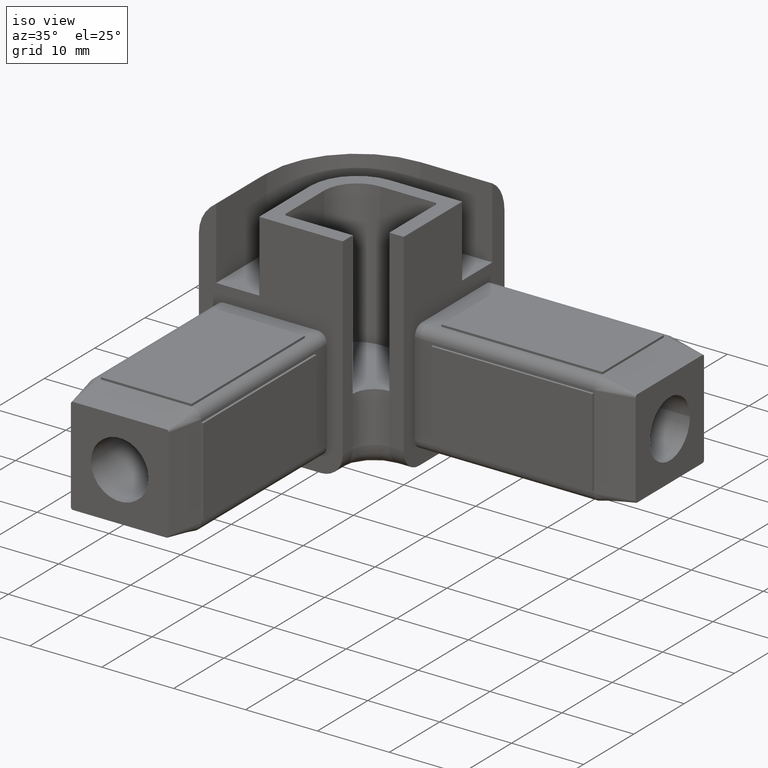
[diagram: clean part render]
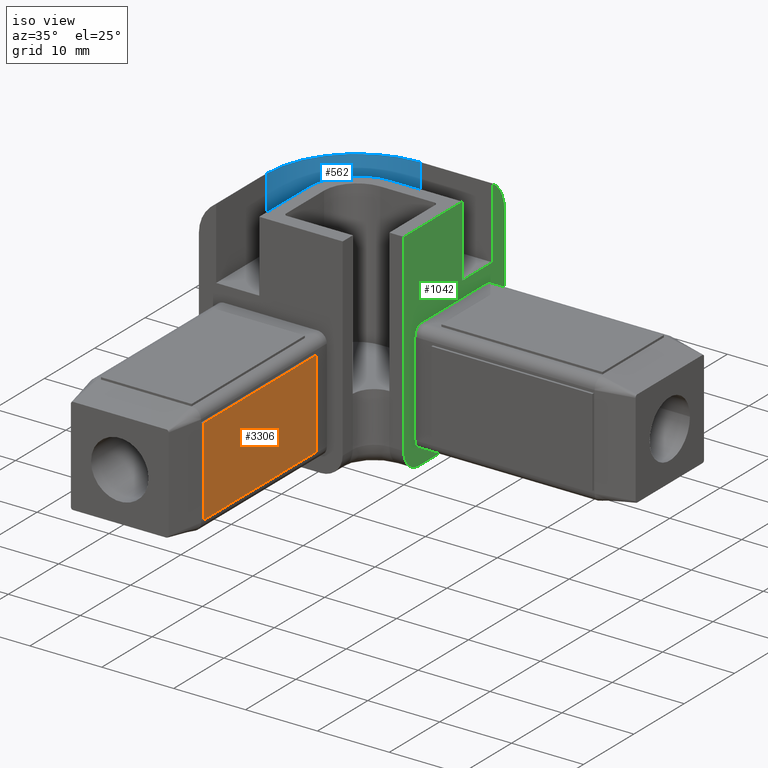
[diagram: same view with three faces highlighted in distinct colors, each labeled with its STEP entity id]
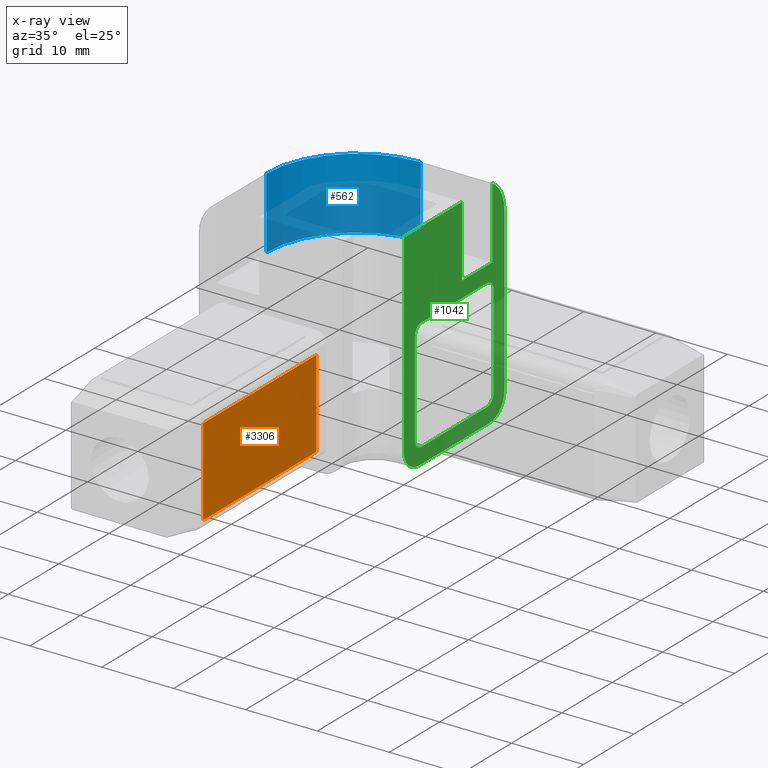
[diagram: x-ray of the same camera — body ghosted, the three highlighted faces saturated]
A machine part, iso view with three faces highlighted in distinct colors.
The next image is the same camera in x-ray (body ghosted, the three faces saturated) — at least one of them is partly hidden behind the body in this view.
Their STEP definitions:

[orange] entity #3306 — the highlighted planar face has unit normal (1, 0, 0).
#3204=CARTESIAN_POINT('',(-36.899990346765776,-17.500000000000313,-6.099999999999580));
#3205=VERTEX_POINT('',#3204);
#3213=CARTESIAN_POINT('',(-36.899990346765776,-17.500000000000313,6.099999999999819));
#3214=VERTEX_POINT('',#3213);
#3221=CARTESIAN_POINT('',(-36.899990346765776,-17.500000000000313,-6.099999999999580));
#3222=DIRECTION('',(0.0,0.0,1.0));
#3223=VECTOR('',#3222,12.199999999999399);
#3224=LINE('',#3221,#3223);
#3225=EDGE_CURVE('',#3205,#3214,#3224,.T.);
#3237=CARTESIAN_POINT('',(-36.899990346765776,-39.999997575695033,6.099999999999819));
#3238=VERTEX_POINT('',#3237);
#3245=CARTESIAN_POINT('',(-36.899990346765776,-17.500000000000313,6.099999999999819));
#3246=DIRECTION('',(0.0,-1.0,0.0));
#3247=VECTOR('',#3246,22.499997575694721);
#3248=LINE('',#3245,#3247);
#3249=EDGE_CURVE('',#3214,#3238,#3248,.T.);
#3261=CARTESIAN_POINT('',(-36.899990346765776,-39.999997575695033,-6.099999999999580));
#3262=VERTEX_POINT('',#3261);
#3269=CARTESIAN_POINT('',(-36.899990346765776,-39.999997575695033,6.099999999999819));
#3270=DIRECTION('',(0.0,0.0,-1.0));
#3271=VECTOR('',#3270,12.199999999999399);
#3272=LINE('',#3269,#3271);
#3273=EDGE_CURVE('',#3238,#3262,#3272,.T.);
#3283=CARTESIAN_POINT('',(-36.899990346765776,-39.999997575695033,-6.099999999999580));
#3284=DIRECTION('',(0.0,1.0,0.0));
#3285=VECTOR('',#3284,22.499997575694721);
#3286=LINE('',#3283,#3285);
#3287=EDGE_CURVE('',#3262,#3205,#3286,.T.);
#3295=CARTESIAN_POINT('',(-36.899990346765776,-42.251197333351371,-7.321200000092491));
#3296=DIRECTION('',(1.0,0.0,0.0));
#3297=DIRECTION('',(0.0,1.0,0.0));
#3298=AXIS2_PLACEMENT_3D('',#3295,#3296,#3297);
#3299=PLANE('',#3298);
#3300=ORIENTED_EDGE('',*,*,#3225,.T.);
#3301=ORIENTED_EDGE('',*,*,#3249,.T.);
#3302=ORIENTED_EDGE('',*,*,#3273,.T.);
#3303=ORIENTED_EDGE('',*,*,#3287,.T.);
#3304=EDGE_LOOP('',(#3300,#3301,#3302,#3303));
#3305=FACE_OUTER_BOUND('',#3304,.T.);
#3306=ADVANCED_FACE('',(#3305),#3299,.T.);

[blue] entity #562 — the highlighted cylindrical surface (partial cylindrical patch) has radius 12.6 mm, axis along (0, 0, 1).
#221=CARTESIAN_POINT('',(-39.999990346764093,7.600000000000108,9.999999923706001));
#222=VERTEX_POINT('',#221);
#229=CARTESIAN_POINT('',(-52.599990346764116,-4.999999999999886,9.999999923706001));
#230=VERTEX_POINT('',#229);
#231=CARTESIAN_POINT('',(-39.999990346764093,-4.999999999999886,9.999999923706001));
#232=DIRECTION('',(0.0,0.0,1.0));
#233=DIRECTION('',(1.0,0.0,0.0));
#234=AXIS2_PLACEMENT_3D('',#231,#232,#233);
#235=CIRCLE('',#234,12.599999999999994);
#236=EDGE_CURVE('',#222,#230,#235,.T.);
#458=CARTESIAN_POINT('',(-52.599990346764116,-4.999999999999886,19.919999999999945));
#459=VERTEX_POINT('',#458);
#491=CARTESIAN_POINT('',(-39.999990346764093,7.600000000000108,19.919999999999945));
#492=VERTEX_POINT('',#491);
#530=CARTESIAN_POINT('',(-39.999990346764093,7.600000000000108,19.919999999999945));
#531=DIRECTION('',(0.0,0.0,-1.0));
#532=VECTOR('',#531,9.920000076293945);
#533=LINE('',#530,#532);
#534=EDGE_CURVE('',#492,#222,#533,.T.);
#540=CARTESIAN_POINT('',(-39.999990346764093,-4.999999999999886,19.919999999999945));
#541=DIRECTION('',(0.0,0.0,1.0));
#542=DIRECTION('',(1.0,0.0,0.0));
#543=AXIS2_PLACEMENT_3D('',#540,#541,#542);
#544=CYLINDRICAL_SURFACE('',#543,12.599999999999994);
#545=CARTESIAN_POINT('',(-39.999990346764093,-4.999999999999886,19.919999999999945));
#546=DIRECTION('',(0.0,0.0,1.0));
#547=DIRECTION('',(1.0,0.0,0.0));
#548=AXIS2_PLACEMENT_3D('',#545,#546,#547);
#549=CIRCLE('',#548,12.599999999999994);
#550=EDGE_CURVE('',#492,#459,#549,.T.);
#551=ORIENTED_EDGE('',*,*,#550,.T.);
#552=CARTESIAN_POINT('',(-52.599990346764116,-4.999999999999886,19.919999999999945));
#553=DIRECTION('',(0.0,0.0,-1.0));
#554=VECTOR('',#553,9.920000076293945);
#555=LINE('',#552,#554);
#556=EDGE_CURVE('',#459,#230,#555,.T.);
#557=ORIENTED_EDGE('',*,*,#556,.T.);
#558=ORIENTED_EDGE('',*,*,#236,.F.);
#559=ORIENTED_EDGE('',*,*,#534,.F.);
#560=EDGE_LOOP('',(#551,#557,#558,#559));
#561=FACE_OUTER_BOUND('',#560,.T.);
#562=ADVANCED_FACE('',(#561),#544,.F.);

[green] entity #1042 — the highlighted planar face has unit normal (1, 0, 0).
#7=CARTESIAN_POINT('',(-29.999990346764093,-9.999999999999886,19.919999999999945));
#8=VERTEX_POINT('',#7);
#9=CARTESIAN_POINT('',(-29.999990346764093,1.599999999999994,19.919999999999945));
#10=VERTEX_POINT('',#9);
#11=CARTESIAN_POINT('',(-29.999990346764093,-9.999999999999886,19.919999999999945));
#12=DIRECTION('',(0.0,1.0,0.0));
#13=VECTOR('',#12,11.599999999999881);
#14=LINE('',#11,#13);
#15=EDGE_CURVE('',#8,#10,#14,.T.);
#188=CARTESIAN_POINT('',(-29.999990346764093,1.599999999999994,9.999999923706001));
#189=VERTEX_POINT('',#188);
#190=CARTESIAN_POINT('',(-29.999990346764093,1.599999999999994,19.919999999999945));
#191=DIRECTION('',(0.0,0.0,-1.0));
#192=VECTOR('',#191,9.920000076293945);
#193=LINE('',#190,#192);
#194=EDGE_CURVE('',#10,#189,#193,.T.);
#213=CARTESIAN_POINT('',(-29.999990346764093,7.600000000000108,9.999999923706001));
#214=VERTEX_POINT('',#213);
#215=CARTESIAN_POINT('',(-29.999990346764093,1.599999999999994,9.999999923706001));
#216=DIRECTION('',(0.0,1.0,0.0));
#217=VECTOR('',#216,6.000000000000114);
#218=LINE('',#215,#217);
#219=EDGE_CURVE('',#189,#214,#218,.T.);
#481=CARTESIAN_POINT('',(-29.999990346764093,10.000000000000114,15.649168699187417));
#482=VERTEX_POINT('',#481);
#500=CARTESIAN_POINT('',(-29.999990346764093,7.600000000000108,19.919999999999945));
#501=VERTEX_POINT('',#500);
#508=CARTESIAN_POINT('',(-29.999990346764093,5.000000000000114,15.649168699187417));
#509=DIRECTION('',(1.0,0.0,0.0));
#510=DIRECTION('',(0.0,1.0,0.0));
#511=AXIS2_PLACEMENT_3D('',#508,#509,#510);
#512=CIRCLE('',#511,5.0);
#513=EDGE_CURVE('',#482,#501,#512,.T.);
#523=CARTESIAN_POINT('',(-29.999990346764093,7.600000000000108,19.919999999999945));
#524=DIRECTION('',(0.0,0.0,-1.0));
#525=VECTOR('',#524,9.920000076293945);
#526=LINE('',#523,#525);
#527=EDGE_CURVE('',#501,#214,#526,.T.);
#723=CARTESIAN_POINT('',(-29.999990346764093,7.000000000000114,-9.999999999999719));
#724=VERTEX_POINT('',#723);
#742=CARTESIAN_POINT('',(-29.999990346764093,10.000000000000114,-6.999999999999719));
#743=VERTEX_POINT('',#742);
#750=CARTESIAN_POINT('',(-29.999990346764093,7.000000000000114,-6.999999999999719));
#751=DIRECTION('',(1.0,0.0,0.0));
#752=DIRECTION('',(0.0,0.0,-1.0));
#753=AXIS2_PLACEMENT_3D('',#750,#751,#752);
#754=CIRCLE('',#753,3.0);
#755=EDGE_CURVE('',#724,#743,#754,.T.);
#810=CARTESIAN_POINT('',(-29.999990346764093,10.000000000000114,-6.999999999999719));
#811=DIRECTION('',(0.0,0.0,1.0));
#812=VECTOR('',#811,22.649168699187136);
#813=LINE('',#810,#812);
#814=EDGE_CURVE('',#743,#482,#813,.T.);
#935=CARTESIAN_POINT('',(-29.999990346764093,-9.999999999999886,-9.999999999999719));
#936=DIRECTION('',(1.0,0.0,0.0));
#937=DIRECTION('',(0.0,1.0,0.0));
#938=AXIS2_PLACEMENT_3D('',#935,#936,#937);
#939=PLANE('',#938);
#940=CARTESIAN_POINT('',(-29.999990346764093,-6.999999999999886,-9.999999999999719));
#941=VERTEX_POINT('',#940);
#942=CARTESIAN_POINT('',(-29.999990346764093,-6.999999999999886,-9.999999999999719));
#943=DIRECTION('',(0.0,1.0,0.0));
#944=VECTOR('',#943,14.0);
#945=LINE('',#942,#944);
#946=EDGE_CURVE('',#941,#724,#945,.T.);
#947=ORIENTED_EDGE('',*,*,#946,.T.);
#948=ORIENTED_EDGE('',*,*,#755,.T.);
#949=ORIENTED_EDGE('',*,*,#814,.T.);
#950=ORIENTED_EDGE('',*,*,#513,.T.);
#951=ORIENTED_EDGE('',*,*,#527,.T.);
#952=ORIENTED_EDGE('',*,*,#219,.F.);
#953=ORIENTED_EDGE('',*,*,#194,.F.);
#954=ORIENTED_EDGE('',*,*,#15,.F.);
#955=CARTESIAN_POINT('',(-29.999990346764093,-9.999999999999886,-6.999999999999719));
#956=VERTEX_POINT('',#955);
#957=CARTESIAN_POINT('',(-29.999990346764093,-9.999999999999886,-6.999999999999719));
#958=DIRECTION('',(0.0,0.0,1.0));
#959=VECTOR('',#958,26.919999999999668);
#960=LINE('',#957,#959);
#961=EDGE_CURVE('',#956,#8,#960,.T.);
#962=ORIENTED_EDGE('',*,*,#961,.F.);
#963=CARTESIAN_POINT('',(-29.999990346764093,-6.999999999999886,-6.999999999999719));
#964=DIRECTION('',(1.0,0.0,0.0));
#965=DIRECTION('',(0.0,-1.0,0.0));
#966=AXIS2_PLACEMENT_3D('',#963,#964,#965);
#967=CIRCLE('',#966,3.0);
#968=EDGE_CURVE('',#956,#941,#967,.T.);
#969=ORIENTED_EDGE('',*,*,#968,.T.);
#970=EDGE_LOOP('',(#947,#948,#949,#950,#951,#952,#953,#954,#962,#969));
#971=FACE_OUTER_BOUND('',#970,.T.);
#972=CARTESIAN_POINT('',(-29.999990346764093,7.800114479961167,-6.518844334662036));
#973=VERTEX_POINT('',#972);
#974=CARTESIAN_POINT('',(-29.999990346764093,7.800114479961167,6.492768504121903));
#975=VERTEX_POINT('',#974);
#976=CARTESIAN_POINT('',(-29.999990346764093,7.800114479961167,-6.518844334662036));
#977=DIRECTION('',(0.0,0.0,1.0));
#978=VECTOR('',#977,13.011612838783940);
#979=LINE('',#976,#978);
#980=EDGE_CURVE('',#973,#975,#979,.T.);
#981=ORIENTED_EDGE('',*,*,#980,.F.);
#982=CARTESIAN_POINT('',(-29.999990346764093,6.492663622970127,-7.800190528373461));
#983=VERTEX_POINT('',#982);
#984=CARTESIAN_POINT('',(-29.999990346764093,6.492663622970127,-6.492473758294965));
#985=DIRECTION('',(1.0,0.0,0.0));
#986=DIRECTION('',(0.0,0.0,-1.0));
#987=AXIS2_PLACEMENT_3D('',#984,#985,#986);
#988=CIRCLE('',#987,1.307716770078496);
#989=EDGE_CURVE('',#983,#973,#988,.T.);
#990=ORIENTED_EDGE('',*,*,#989,.F.);
#991=CARTESIAN_POINT('',(-29.999990346764093,-6.514457880513163,-7.800190528373463));
#992=VERTEX_POINT('',#991);
#993=CARTESIAN_POINT('',(-29.999990346764093,-6.514457880513151,-7.800190528373463));
#994=DIRECTION('',(0.0,1.0,0.0));
#995=VECTOR('',#994,13.007121503483285);
#996=LINE('',#993,#995);
#997=EDGE_CURVE('',#992,#983,#996,.T.);
#998=ORIENTED_EDGE('',*,*,#997,.F.);
#999=CARTESIAN_POINT('',(-29.999990346764093,-7.799999999998391,-6.492702063160188));
#1000=VERTEX_POINT('',#999);
#1001=CARTESIAN_POINT('',(-29.999990346764093,-6.492324204442724,-6.492702063160188));
#1002=DIRECTION('',(1.0,0.0,0.0));
#1003=DIRECTION('',(0.0,-1.0,0.0));
#1004=AXIS2_PLACEMENT_3D('',#1001,#1002,#1003);
#1005=CIRCLE('',#1004,1.307675795555671);
#1006=EDGE_CURVE('',#1000,#992,#1005,.T.);
#1007=ORIENTED_EDGE('',*,*,#1006,.F.);
#1008=CARTESIAN_POINT('',(-29.999990346764093,-7.799999999998420,6.492702063203955));
#1009=VERTEX_POINT('',#1008);
#1010=CARTESIAN_POINT('',(-29.999990346764093,-7.799999999998420,6.492702063203955));
#1011=DIRECTION('',(0.0,0.0,-1.0));
#1012=VECTOR('',#1011,12.985404126364143);
#1013=LINE('',#1010,#1012);
#1014=EDGE_CURVE('',#1009,#1000,#1013,.T.);
#1015=ORIENTED_EDGE('',*,*,#1014,.F.);
#1016=CARTESIAN_POINT('',(-29.999990346764093,-6.470219850950315,7.800095264517101));
#1017=VERTEX_POINT('',#1016);
#1018=CARTESIAN_POINT('',(-29.999990346764093,-6.470219850950315,6.470123445729424));
#1019=DIRECTION('',(1.0,0.0,0.0));
#1020=DIRECTION('',(0.0,0.0,1.0));
#1021=AXIS2_PLACEMENT_3D('',#1018,#1019,#1020);
#1022=CIRCLE('',#1021,1.329971818787677);
#1023=EDGE_CURVE('',#1017,#1009,#1022,.T.);
#1024=ORIENTED_EDGE('',*,*,#1023,.F.);
#1025=CARTESIAN_POINT('',(-29.999990346764093,6.492787719565968,7.800095264517102));
#1026=VERTEX_POINT('',#1025);
#1027=CARTESIAN_POINT('',(-29.999990346764093,6.492787719565968,7.800095264517102));
#1028=DIRECTION('',(0.0,-1.0,0.0));
#1029=VECTOR('',#1028,12.963007570516304);
#1030=LINE('',#1027,#1029);
#1031=EDGE_CURVE('',#1026,#1017,#1030,.T.);
#1032=ORIENTED_EDGE('',*,*,#1031,.F.);
#1033=CARTESIAN_POINT('',(-29.999990346764093,6.492787719565968,6.492768504121903));
#1034=DIRECTION('',(1.0,0.0,0.0));
#1035=DIRECTION('',(0.0,1.0,0.0));
#1036=AXIS2_PLACEMENT_3D('',#1033,#1034,#1035);
#1037=CIRCLE('',#1036,1.307326760395199);
#1038=EDGE_CURVE('',#975,#1026,#1037,.T.);
#1039=ORIENTED_EDGE('',*,*,#1038,.F.);
#1040=EDGE_LOOP('',(#981,#990,#998,#1007,#1015,#1024,#1032,#1039));
#1041=FACE_BOUND('',#1040,.T.);
#1042=ADVANCED_FACE('',(#971,#1041),#939,.T.);